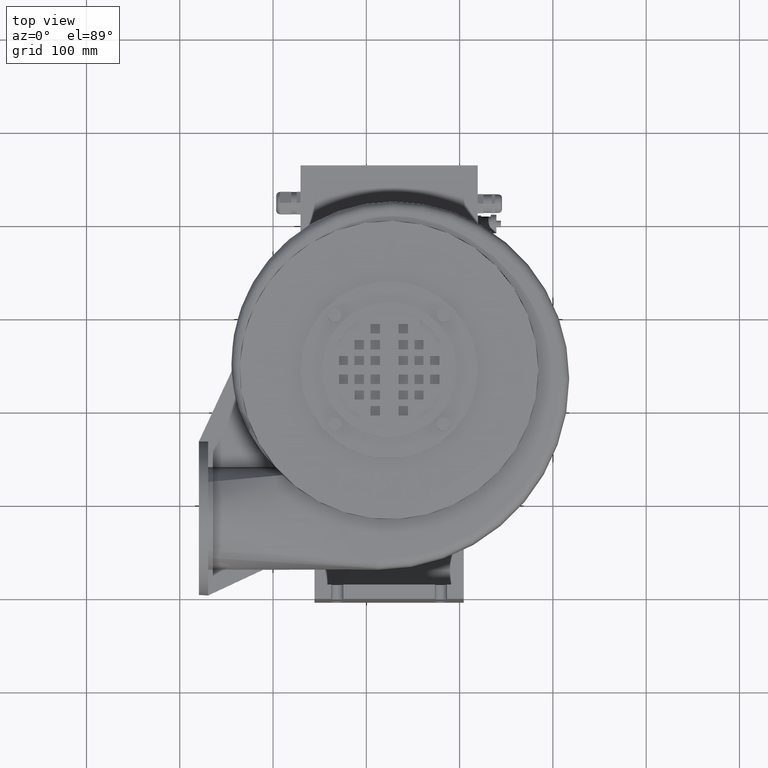
[diagram: clean part render]
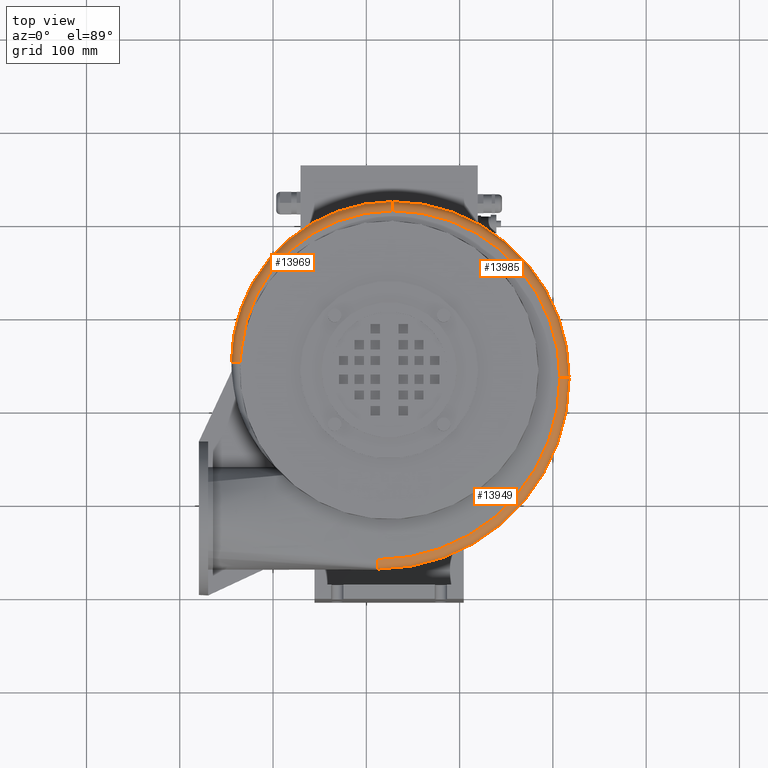
[diagram: same view with one multi-face feature highlighted, each face labeled with its STEP entity id]
A machine part, top view. The highlighted faces form ONE feature: a constant-radius fillet chain: 3 tangent blend faces with common blend radius 10 mm. The faces share edges in the B-rep.
Their STEP definitions:
[1] entity #13949 (Torus):
#211=CIRCLE('',#14747,205.);
#212=CIRCLE('',#14748,10.);
#213=CIRCLE('',#14749,195.);
#214=CIRCLE('',#14750,10.);
#294=TOROIDAL_SURFACE('',#14746,195.,10.);
#1325=FACE_OUTER_BOUND('',#2127,.T.);
#2127=EDGE_LOOP('',(#10262,#10263,#10264,#10265));
#6003=VERTEX_POINT('',#21208);
#6004=VERTEX_POINT('',#21209);
#6005=VERTEX_POINT('',#21211);
#6006=VERTEX_POINT('',#21213);
#7595=EDGE_CURVE('',#6003,#6004,#211,.T.);
#7596=EDGE_CURVE('',#6005,#6004,#212,.T.);
#7597=EDGE_CURVE('',#6005,#6006,#213,.T.);
#7598=EDGE_CURVE('',#6006,#6003,#214,.T.);
#10262=ORIENTED_EDGE('',*,*,#7595,.T.);
#10263=ORIENTED_EDGE('',*,*,#7596,.F.);
#10264=ORIENTED_EDGE('',*,*,#7597,.T.);
#10265=ORIENTED_EDGE('',*,*,#7598,.T.);
#13949=ADVANCED_FACE('',(#1325),#294,.T.);
#14746=AXIS2_PLACEMENT_3D('',#21207,#16512,#16513);
#14747=AXIS2_PLACEMENT_3D('',#21210,#16514,#16515);
#14748=AXIS2_PLACEMENT_3D('',#21212,#16516,#16517);
#14749=AXIS2_PLACEMENT_3D('',#21214,#16518,#16519);
#14750=AXIS2_PLACEMENT_3D('',#21215,#16520,#16521);
#16512=DIRECTION('center_axis',(1.22464679914736E-16,1.29953312800048E-15,
-1.));
#16513=DIRECTION('ref_axis',(-1.,0.,-1.38642485026361E-16));
#16514=DIRECTION('center_axis',(-1.22464679914736E-16,-1.29953312800048E-15,
1.));
#16515=DIRECTION('ref_axis',(0.707106781186547,-0.707106781186547,-8.32313081562155E-16));
#16516=DIRECTION('center_axis',(-2.46519032881566E-31,1.,1.29953312800048E-15));
#16517=DIRECTION('ref_axis',(-1.22464679914736E-16,-1.29953312800048E-15,
1.));
#16518=DIRECTION('center_axis',(1.22464679914736E-16,1.29953312800048E-15,
-1.));
#16519=DIRECTION('ref_axis',(0.707106781186548,-0.707106781186548,-8.32313081562155E-16));
#16520=DIRECTION('center_axis',(1.,1.12908644836052E-16,1.22464679914736E-16));
#16521=DIRECTION('ref_axis',(1.12908644836053E-16,-1.,-1.29953312800048E-15));
#21207=CARTESIAN_POINT('Origin',(12.4358485344729,129.787887173537,114.995715093864));
#21208=CARTESIAN_POINT('',(12.4358485344729,-75.2121128264628,114.995715093864));
#21209=CARTESIAN_POINT('',(217.435848534473,129.787887173537,114.995715093864));
#21210=CARTESIAN_POINT('Origin',(12.4358485344729,129.787887173537,114.995715093864));
#21211=CARTESIAN_POINT('',(207.435848534473,129.787887173537,124.995715093864));
#21212=CARTESIAN_POINT('Origin',(207.435848534473,129.787887173537,114.995715093864));
#21213=CARTESIAN_POINT('',(12.4358485344729,-65.2121128264628,124.995715093864));
#21214=CARTESIAN_POINT('Origin',(12.4358485344729,129.787887173537,124.995715093864));
#21215=CARTESIAN_POINT('Origin',(12.4358485344729,-65.2121128264628,114.995715093864));
[2] entity #13985 (Torus):
#212=CIRCLE('',#14748,10.);
#237=CIRCLE('',#14790,10.);
#239=CIRCLE('',#14793,179.);
#251=CIRCLE('',#14814,189.);
#300=TOROIDAL_SURFACE('',#14816,179.,10.);
#1361=FACE_OUTER_BOUND('',#2178,.T.);
#2178=EDGE_LOOP('',(#10444,#10445,#10446,#10447));
#6004=VERTEX_POINT('',#21209);
#6005=VERTEX_POINT('',#21211);
#6049=VERTEX_POINT('',#21465);
#6050=VERTEX_POINT('',#21467);
#7596=EDGE_CURVE('',#6005,#6004,#212,.T.);
#7658=EDGE_CURVE('',#6049,#6050,#237,.T.);
#7661=EDGE_CURVE('',#6049,#6005,#239,.T.);
#7678=EDGE_CURVE('',#6004,#6050,#251,.T.);
#10444=ORIENTED_EDGE('',*,*,#7596,.T.);
#10445=ORIENTED_EDGE('',*,*,#7678,.T.);
#10446=ORIENTED_EDGE('',*,*,#7658,.F.);
#10447=ORIENTED_EDGE('',*,*,#7661,.T.);
#13985=ADVANCED_FACE('',(#1361),#300,.T.);
#14748=AXIS2_PLACEMENT_3D('',#21212,#16516,#16517);
#14790=AXIS2_PLACEMENT_3D('',#21468,#16623,#16624);
#14793=AXIS2_PLACEMENT_3D('',#21472,#16630,#16631);
#14814=AXIS2_PLACEMENT_3D('',#21613,#16675,#16676);
#14816=AXIS2_PLACEMENT_3D('',#21615,#16679,#16680);
#16516=DIRECTION('center_axis',(-2.46519032881566E-31,1.,1.29953312800048E-15));
#16517=DIRECTION('ref_axis',(-1.22464679914736E-16,-1.29953312800048E-15,
1.));
#16623=DIRECTION('center_axis',(-1.,-1.01654872413676E-31,-1.22464679914736E-16));
#16624=DIRECTION('ref_axis',(-1.22464679914736E-16,-1.29953312800048E-15,
1.));
#16630=DIRECTION('center_axis',(1.22464679914736E-16,1.29953312800048E-15,
-1.));
#16631=DIRECTION('ref_axis',(0.707106781186548,0.707106781186548,1.00550429280925E-15));
#16675=DIRECTION('center_axis',(-1.22464679914736E-16,-1.29953312800048E-15,
1.));
#16676=DIRECTION('ref_axis',(0.707106781186547,0.707106781186548,1.00550429280925E-15));
#16679=DIRECTION('center_axis',(1.22464679914736E-16,1.29953312800048E-15,
-1.));
#16680=DIRECTION('ref_axis',(-1.,0.,-1.50379414975683E-16));
#21209=CARTESIAN_POINT('',(217.435848534473,129.787887173537,114.995715093864));
#21211=CARTESIAN_POINT('',(207.435848534473,129.787887173537,124.995715093864));
#21212=CARTESIAN_POINT('Origin',(207.435848534473,129.787887173537,114.995715093864));
#21465=CARTESIAN_POINT('',(28.4358485344729,308.787887173537,124.995715093865));
#21467=CARTESIAN_POINT('',(28.4358485344729,318.787887173537,114.995715093865));
#21468=CARTESIAN_POINT('Origin',(28.4358485344729,308.787887173537,114.995715093865));
#21472=CARTESIAN_POINT('Origin',(28.4358485344729,129.787887173537,124.995715093864));
#21613=CARTESIAN_POINT('Origin',(28.4358485344729,129.787887173537,114.995715093864));
#21615=CARTESIAN_POINT('Origin',(28.4358485344729,129.787887173537,114.995715093864));
[3] entity #13969 (Torus):
#208=CIRCLE('',#14742,10.);
#236=CIRCLE('',#14789,163.);
#237=CIRCLE('',#14790,10.);
#238=CIRCLE('',#14791,173.);
#295=TOROIDAL_SURFACE('',#14788,163.,10.);
#660=B_SPLINE_CURVE_WITH_KNOTS('',3,(#21203,#21204,#21205,#21206),
 .UNSPECIFIED.,.F.,.F.,(4,4),(-12.7042807307657,-11.8625915796871),
 .UNSPECIFIED.);
#1345=FACE_OUTER_BOUND('',#2157,.T.);
#2157=EDGE_LOOP('',(#10364,#10365,#10366,#10367,#10368));
#5985=VERTEX_POINT('',#21114);
#5996=VERTEX_POINT('',#21148);
#6002=VERTEX_POINT('',#21201);
#6049=VERTEX_POINT('',#21465);
#6050=VERTEX_POINT('',#21467);
#7586=EDGE_CURVE('',#5996,#5985,#208,.T.);
#7594=EDGE_CURVE('',#5996,#6002,#660,.T.);
#7657=EDGE_CURVE('',#6002,#6049,#236,.T.);
#7658=EDGE_CURVE('',#6049,#6050,#237,.T.);
#7659=EDGE_CURVE('',#6050,#5985,#238,.T.);
#10364=ORIENTED_EDGE('',*,*,#7594,.T.);
#10365=ORIENTED_EDGE('',*,*,#7657,.T.);
#10366=ORIENTED_EDGE('',*,*,#7658,.T.);
#10367=ORIENTED_EDGE('',*,*,#7659,.T.);
#10368=ORIENTED_EDGE('',*,*,#7586,.F.);
#13969=ADVANCED_FACE('',(#1345),#295,.T.);
#14742=AXIS2_PLACEMENT_3D('',#21161,#16504,#16505);
#14788=AXIS2_PLACEMENT_3D('',#21464,#16619,#16620);
#14789=AXIS2_PLACEMENT_3D('',#21466,#16621,#16622);
#14790=AXIS2_PLACEMENT_3D('',#21468,#16623,#16624);
#14791=AXIS2_PLACEMENT_3D('',#21469,#16625,#16626);
#16504=DIRECTION('center_axis',(-8.88178419700125E-16,-1.,-1.29953312800048E-15));
#16505=DIRECTION('ref_axis',(-1.22464679914736E-16,-1.29953312800048E-15,
1.));
#16619=DIRECTION('center_axis',(1.22464679914736E-16,1.29953312800048E-15,
-1.));
#16620=DIRECTION('ref_axis',(-1.,0.,-8.2143668874E-17));
#16621=DIRECTION('center_axis',(1.22464679914736E-16,1.29953312800048E-15,
-1.));
#16622=DIRECTION('ref_axis',(-0.707106781186548,0.707106781186547,8.32313081562155E-16));
#16623=DIRECTION('center_axis',(-1.,-1.01654872413676E-31,-1.22464679914736E-16));
#16624=DIRECTION('ref_axis',(-1.22464679914736E-16,-1.29953312800048E-15,
1.));
#16625=DIRECTION('center_axis',(-1.22464679914736E-16,-1.29953312800048E-15,
1.));
#16626=DIRECTION('ref_axis',(-0.707106781186548,0.707106781186547,8.32313081562155E-16));
#21114=CARTESIAN_POINT('',(-144.564151465527,145.787887173537,114.995715093864));
#21148=CARTESIAN_POINT('',(-135.364026309033,145.787887173537,124.96367377329));
#21161=CARTESIAN_POINT('Origin',(-134.564151465527,145.787887173537,114.995715093864));
#21201=CARTESIAN_POINT('',(-133.819285994609,161.352954438078,124.995715093864));
#21203=CARTESIAN_POINT('Ctrl Pts',(-135.364026309033,145.787887173537,124.96367377329));
#21204=CARTESIAN_POINT('Ctrl Pts',(-135.102841480722,151.005050032914,124.984632445009));
#21205=CARTESIAN_POINT('Ctrl Pts',(-134.586662281329,156.199511160108,124.995715093864));
#21206=CARTESIAN_POINT('Ctrl Pts',(-133.819285994609,161.352954438078,124.995715093864));
#21464=CARTESIAN_POINT('Origin',(28.4358485344729,145.787887173537,114.995715093864));
#21465=CARTESIAN_POINT('',(28.4358485344729,308.787887173537,124.995715093865));
#21466=CARTESIAN_POINT('Origin',(28.4358485344729,145.787887173537,124.995715093864));
#21467=CARTESIAN_POINT('',(28.4358485344729,318.787887173537,114.995715093865));
#21468=CARTESIAN_POINT('Origin',(28.4358485344729,308.787887173537,114.995715093865));
#21469=CARTESIAN_POINT('Origin',(28.4358485344729,145.787887173537,114.995715093864));